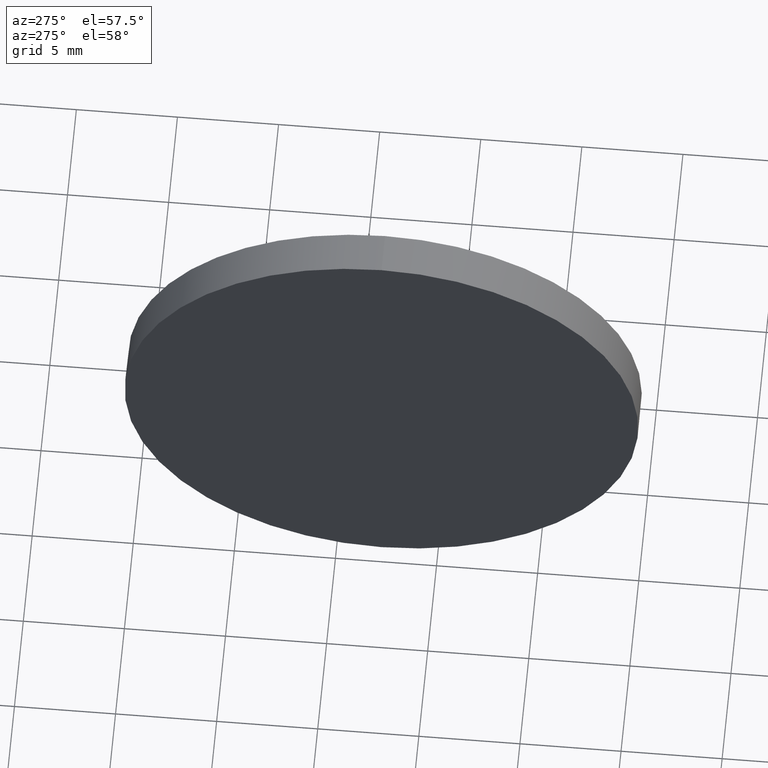
[diagram: clean part render]
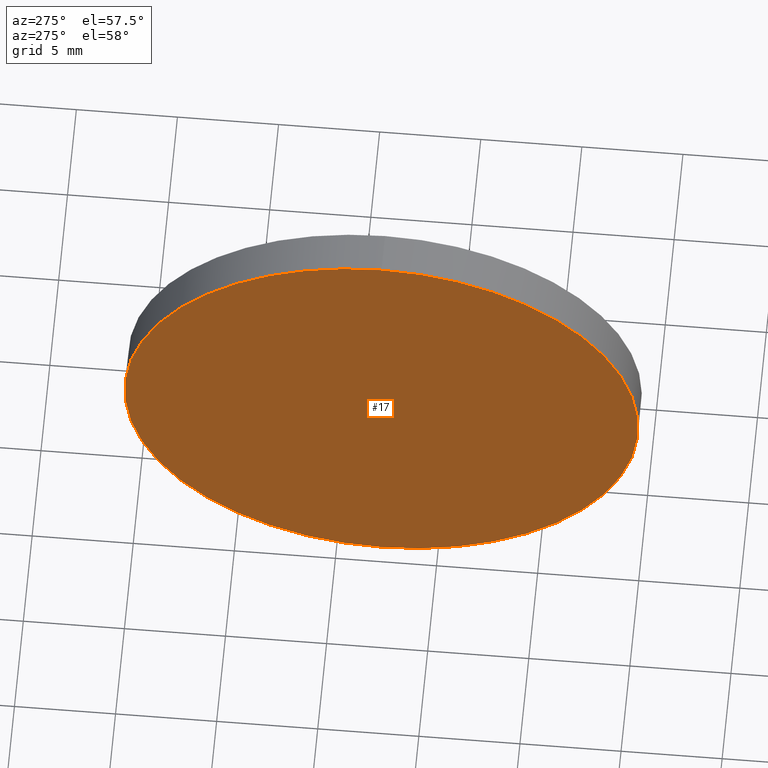
[diagram: same view with one face highlighted and labeled with its STEP entity id]
A machine part, auxiliary view. The second image highlights one B-rep face of the part: STEP entity #17.
In plain terms, the highlighted planar face has unit normal (1, 0, 0).
Its self-contained STEP definition (entity closure, byte-faithful):
#1 = VERTEX_POINT ( 'NONE', #12 ) ;
#7 = EDGE_CURVE ( 'NONE', #1, #80, #123, .T. ) ;
#9 = DIRECTION ( 'NONE',  ( 0.0000000000000000000, 0.0000000000000000000, 1.000000000000000000 ) ) ;
#10 = CIRCLE ( 'NONE', #186, 12.70000000000000300 ) ;
#12 = CARTESIAN_POINT ( 'NONE',  ( 435.5040893559401000, 72.76896585251475400, -12.70000000000000300 ) ) ;
#17 = ADVANCED_FACE ( 'NONE', ( #143 ), #164, .F. ) ;
#28 = EDGE_LOOP ( 'NONE', ( #168, #172 ) ) ;
#36 = CARTESIAN_POINT ( 'NONE',  ( 435.5040893559401000, 72.76896585251475400, 12.70000000000000300 ) ) ;
#44 = DIRECTION ( 'NONE',  ( -1.000000000000000000, -0.0000000000000000000, -0.0000000000000000000 ) ) ;
#80 = VERTEX_POINT ( 'NONE', #36 ) ;
#81 = AXIS2_PLACEMENT_3D ( 'NONE', #106, #181, #120 ) ;
#89 = DIRECTION ( 'NONE',  ( -1.000000000000000000, -0.0000000000000000000, -0.0000000000000000000 ) ) ;
#93 = EDGE_CURVE ( 'NONE', #80, #1, #10, .T. ) ;
#99 = AXIS2_PLACEMENT_3D ( 'NONE', #118, #44, #9 ) ;
#106 = CARTESIAN_POINT ( 'NONE',  ( 435.5040893559401000, 72.76896585251475400, 0.0000000000000000000 ) ) ;
#118 = CARTESIAN_POINT ( 'NONE',  ( 435.5040893559401000, 72.76896585251475400, 0.0000000000000000000 ) ) ;
#120 = DIRECTION ( 'NONE',  ( 0.0000000000000000000, 0.0000000000000000000, -1.000000000000000000 ) ) ;
#123 = CIRCLE ( 'NONE', #99, 12.70000000000000300 ) ;
#133 = DIRECTION ( 'NONE',  ( 0.0000000000000000000, 0.0000000000000000000, 1.000000000000000000 ) ) ;
#143 = FACE_OUTER_BOUND ( 'NONE', #28, .T. ) ;
#164 = PLANE ( 'NONE',  #81 ) ;
#168 = ORIENTED_EDGE ( 'NONE', *, *, #93, .T. ) ;
#172 = ORIENTED_EDGE ( 'NONE', *, *, #7, .T. ) ;
#180 = CARTESIAN_POINT ( 'NONE',  ( 435.5040893559401000, 72.76896585251475400, 0.0000000000000000000 ) ) ;
#181 = DIRECTION ( 'NONE',  ( 1.000000000000000000, 0.0000000000000000000, 0.0000000000000000000 ) ) ;
#186 = AXIS2_PLACEMENT_3D ( 'NONE', #180, #89, #133 ) ;